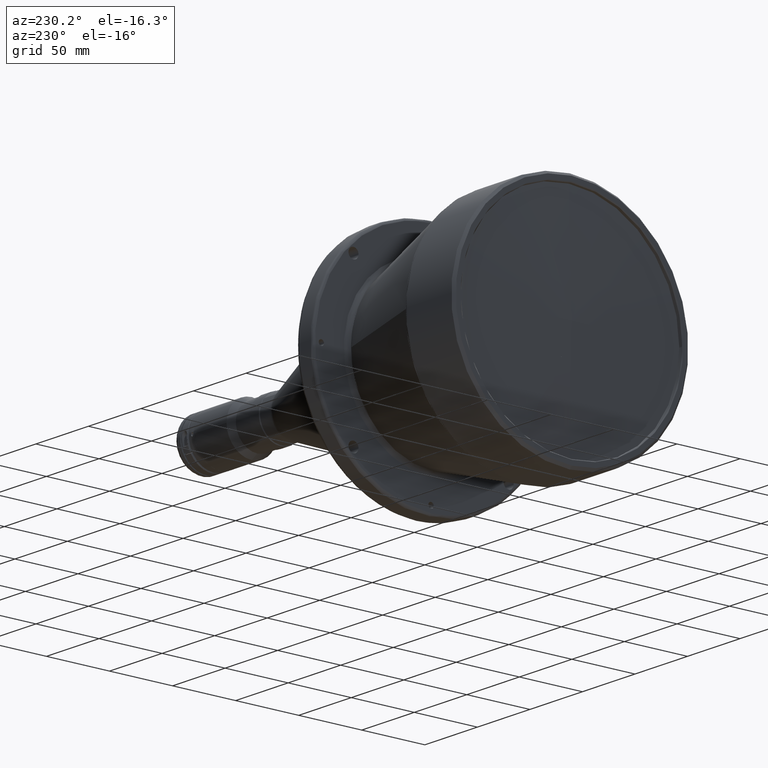
[diagram: clean part render]
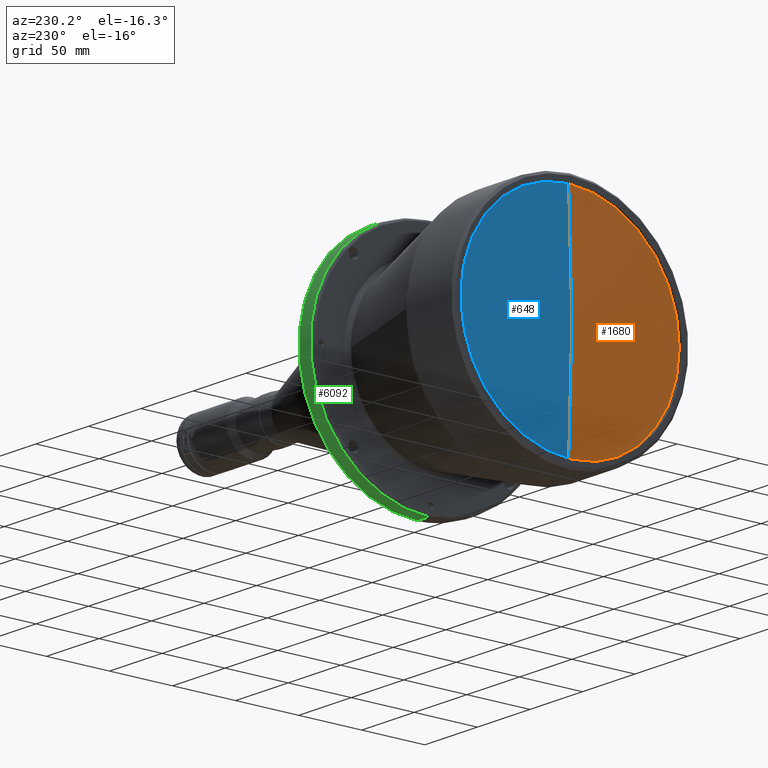
[diagram: same view with three faces highlighted in distinct colors, each labeled with its STEP entity id]
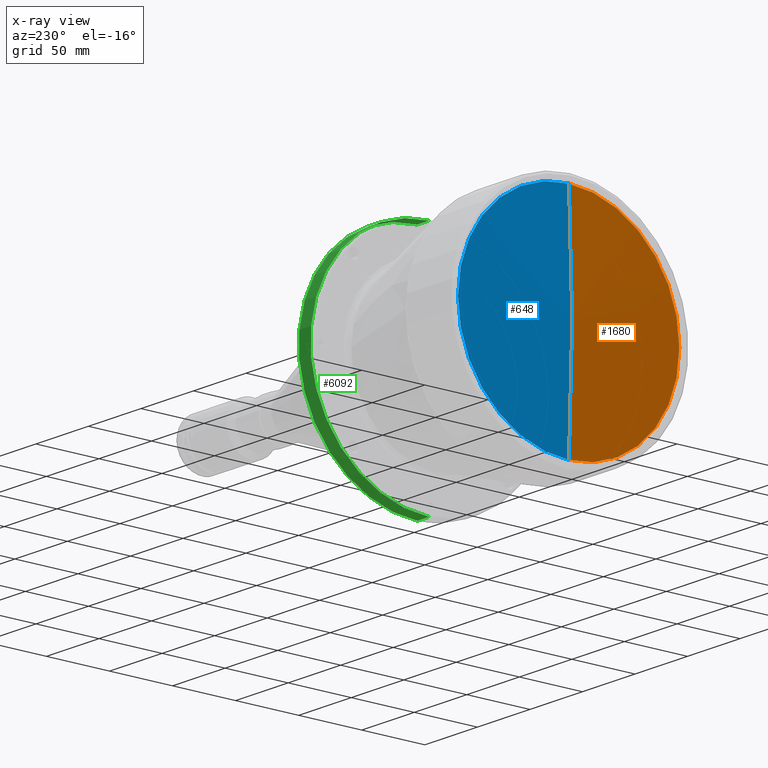
[diagram: x-ray of the same camera — body ghosted, the three highlighted faces saturated]
A machine part, auxiliary view with three faces highlighted in distinct colors.
The next image is the same camera in x-ray (body ghosted, the three faces saturated) — at least one of them is partly hidden behind the body in this view.
Their STEP definitions:

[orange] entity #1680 — the highlighted conical surface has half-angle 88.001 deg.
#137 = DIRECTION ( 'NONE',  ( 1.000000000000000000, 0.0000000000000000000, 0.0000000000000000000 ) ) ;
#148 = AXIS2_PLACEMENT_3D ( 'NONE', #1465, #137, #4847 ) ;
#243 = ORIENTED_EDGE ( 'NONE', *, *, #5098, .F. ) ;
#681 = DIRECTION ( 'NONE',  ( 0.0000000000000000000, 0.0000000000000000000, -1.000000000000000000 ) ) ;
#834 = DIRECTION ( 'NONE',  ( 0.03488013094996843900, 1.223901605364293100E-016, 0.9993915030982167800 ) ) ;
#835 = LINE ( 'NONE', #3746, #4901 ) ;
#907 = EDGE_CURVE ( 'NONE', #2361, #2837, #835, .T. ) ;
#1244 = EDGE_CURVE ( 'NONE', #2361, #5330, #4748, .T. ) ;
#1398 = ORIENTED_EDGE ( 'NONE', *, *, #907, .T. ) ;
#1465 = CARTESIAN_POINT ( 'NONE',  ( 3.062595070471539200, 0.0000000000000000000, 0.0000000000000000000 ) ) ;
#1680 = ADVANCED_FACE ( 'NONE', ( #3766 ), #3452, .T. ) ;
#2105 = DIRECTION ( 'NONE',  ( 1.000000000000000000, 0.0000000000000000000, 0.0000000000000000000 ) ) ;
#2361 = VERTEX_POINT ( 'NONE', #3972 ) ;
#2502 = CARTESIAN_POINT ( 'NONE',  ( 3.062595070471539200, 0.0000000000000000000, -87.75000000000001400 ) ) ;
#2556 = DIRECTION ( 'NONE',  ( 1.000000000000000000, 0.0000000000000000000, 0.0000000000000000000 ) ) ;
#2636 = AXIS2_PLACEMENT_3D ( 'NONE', #5876, #2556, #2988 ) ;
#2726 = CARTESIAN_POINT ( 'NONE',  ( 3.165889264587454100, 1.110872249560078200E-014, 90.70960299194108200 ) ) ;
#2837 = VERTEX_POINT ( 'NONE', #2502 ) ;
#2988 = DIRECTION ( 'NONE',  ( 0.0000000000000000000, 0.0000000000000000000, -1.000000000000000000 ) ) ;
#3169 = DIRECTION ( 'NONE',  ( 0.03488013094996843900, 0.0000000000000000000, -0.9993915030982167800 ) ) ;
#3193 = EDGE_LOOP ( 'NONE', ( #3239, #1398, #3787, #243 ) ) ;
#3239 = ORIENTED_EDGE ( 'NONE', *, *, #1244, .F. ) ;
#3327 = AXIS2_PLACEMENT_3D ( 'NONE', #3579, #2105, #681 ) ;
#3452 = CONICAL_SURFACE ( 'NONE', #3327, 90.70960299194108200, 1.535909119305271600 ) ;
#3579 = CARTESIAN_POINT ( 'NONE',  ( 3.165889264587454100, 0.0000000000000000000, 0.0000000000000000000 ) ) ;
#3746 = CARTESIAN_POINT ( 'NONE',  ( 3.165889264587454100, 0.0000000000000000000, -90.70960299194108200 ) ) ;
#3766 = FACE_OUTER_BOUND ( 'NONE', #3193, .T. ) ;
#3787 = ORIENTED_EDGE ( 'NONE', *, *, #6212, .F. ) ;
#3972 = CARTESIAN_POINT ( 'NONE',  ( 0.0000000000000000000, 0.0000000000000000000, 0.0000000000000000000 ) ) ;
#4167 = CARTESIAN_POINT ( 'NONE',  ( 3.062595070471539200, -87.75000000000001400, 0.0000000000000000000 ) ) ;
#4748 = LINE ( 'NONE', #2726, #5875 ) ;
#4847 = DIRECTION ( 'NONE',  ( 0.0000000000000000000, 0.0000000000000000000, -1.000000000000000000 ) ) ;
#4901 = VECTOR ( 'NONE', #3169, 1000.000000000000200 ) ;
#5098 = EDGE_CURVE ( 'NONE', #5330, #5232, #5822, .T. ) ;
#5232 = VERTEX_POINT ( 'NONE', #4167 ) ;
#5330 = VERTEX_POINT ( 'NONE', #6189 ) ;
#5822 = CIRCLE ( 'NONE', #2636, 87.75000000000001400 ) ;
#5875 = VECTOR ( 'NONE', #834, 1000.000000000000200 ) ;
#5876 = CARTESIAN_POINT ( 'NONE',  ( 3.062595070471539200, 0.0000000000000000000, 0.0000000000000000000 ) ) ;
#6117 = CIRCLE ( 'NONE', #148, 87.75000000000001400 ) ;
#6189 = CARTESIAN_POINT ( 'NONE',  ( 3.062595070471539200, 1.074627566251802500E-014, 87.75000000000001400 ) ) ;
#6212 = EDGE_CURVE ( 'NONE', #5232, #2837, #6117, .T. ) ;

[blue] entity #648 — the highlighted conical surface has half-angle 88.001 deg.
#648 = ADVANCED_FACE ( 'NONE', ( #1264 ), #2395, .T. ) ;
#658 = DIRECTION ( 'NONE',  ( 1.000000000000000000, 0.0000000000000000000, 0.0000000000000000000 ) ) ;
#834 = DIRECTION ( 'NONE',  ( 0.03488013094996843900, 1.223901605364293100E-016, 0.9993915030982167800 ) ) ;
#835 = LINE ( 'NONE', #3746, #4901 ) ;
#907 = EDGE_CURVE ( 'NONE', #2361, #2837, #835, .T. ) ;
#1093 = AXIS2_PLACEMENT_3D ( 'NONE', #3111, #1583, #4977 ) ;
#1244 = EDGE_CURVE ( 'NONE', #2361, #5330, #4748, .T. ) ;
#1264 = FACE_OUTER_BOUND ( 'NONE', #5301, .T. ) ;
#1366 = ORIENTED_EDGE ( 'NONE', *, *, #5423, .F. ) ;
#1583 = DIRECTION ( 'NONE',  ( 1.000000000000000000, 0.0000000000000000000, 0.0000000000000000000 ) ) ;
#1943 = DIRECTION ( 'NONE',  ( 0.0000000000000000000, 0.0000000000000000000, -1.000000000000000000 ) ) ;
#2361 = VERTEX_POINT ( 'NONE', #3972 ) ;
#2395 = CONICAL_SURFACE ( 'NONE', #1093, 90.70960299194108200, 1.535909119305271600 ) ;
#2427 = CARTESIAN_POINT ( 'NONE',  ( 3.062595070471539200, 0.0000000000000000000, 0.0000000000000000000 ) ) ;
#2502 = CARTESIAN_POINT ( 'NONE',  ( 3.062595070471539200, 0.0000000000000000000, -87.75000000000001400 ) ) ;
#2726 = CARTESIAN_POINT ( 'NONE',  ( 3.165889264587454100, 1.110872249560078200E-014, 90.70960299194108200 ) ) ;
#2837 = VERTEX_POINT ( 'NONE', #2502 ) ;
#2881 = ORIENTED_EDGE ( 'NONE', *, *, #1244, .T. ) ;
#3111 = CARTESIAN_POINT ( 'NONE',  ( 3.165889264587454100, 0.0000000000000000000, 0.0000000000000000000 ) ) ;
#3169 = DIRECTION ( 'NONE',  ( 0.03488013094996843900, 0.0000000000000000000, -0.9993915030982167800 ) ) ;
#3275 = ORIENTED_EDGE ( 'NONE', *, *, #5492, .F. ) ;
#3369 = CARTESIAN_POINT ( 'NONE',  ( 3.062595070471539200, 87.75000000000001400, 1.074627566251802500E-014 ) ) ;
#3443 = DIRECTION ( 'NONE',  ( 1.000000000000000000, 0.0000000000000000000, 0.0000000000000000000 ) ) ;
#3536 = CARTESIAN_POINT ( 'NONE',  ( 3.062595070471539200, 0.0000000000000000000, 0.0000000000000000000 ) ) ;
#3746 = CARTESIAN_POINT ( 'NONE',  ( 3.165889264587454100, 0.0000000000000000000, -90.70960299194108200 ) ) ;
#3931 = CIRCLE ( 'NONE', #5451, 87.75000000000001400 ) ;
#3972 = CARTESIAN_POINT ( 'NONE',  ( 0.0000000000000000000, 0.0000000000000000000, 0.0000000000000000000 ) ) ;
#4258 = VERTEX_POINT ( 'NONE', #3369 ) ;
#4259 = ORIENTED_EDGE ( 'NONE', *, *, #907, .F. ) ;
#4748 = LINE ( 'NONE', #2726, #5875 ) ;
#4901 = VECTOR ( 'NONE', #3169, 1000.000000000000200 ) ;
#4977 = DIRECTION ( 'NONE',  ( 0.0000000000000000000, 0.0000000000000000000, -1.000000000000000000 ) ) ;
#5014 = DIRECTION ( 'NONE',  ( 0.0000000000000000000, 0.0000000000000000000, -1.000000000000000000 ) ) ;
#5148 = CIRCLE ( 'NONE', #5843, 87.75000000000001400 ) ;
#5301 = EDGE_LOOP ( 'NONE', ( #4259, #2881, #3275, #1366 ) ) ;
#5330 = VERTEX_POINT ( 'NONE', #6189 ) ;
#5423 = EDGE_CURVE ( 'NONE', #2837, #4258, #5148, .T. ) ;
#5451 = AXIS2_PLACEMENT_3D ( 'NONE', #3536, #658, #5014 ) ;
#5492 = EDGE_CURVE ( 'NONE', #4258, #5330, #3931, .T. ) ;
#5843 = AXIS2_PLACEMENT_3D ( 'NONE', #2427, #3443, #1943 ) ;
#5875 = VECTOR ( 'NONE', #834, 1000.000000000000200 ) ;
#6189 = CARTESIAN_POINT ( 'NONE',  ( 3.062595070471539200, 1.074627566251802500E-014, 87.75000000000001400 ) ) ;

[green] entity #6092 — the highlighted cylindrical surface (partial cylindrical patch) has radius 94 mm, axis along (-1, 0, 0).
#46 = ORIENTED_EDGE ( 'NONE', *, *, #1443, .F. ) ;
#255 = LINE ( 'NONE', #2209, #4916 ) ;
#272 = EDGE_LOOP ( 'NONE', ( #480, #4949, #46, #3503 ) ) ;
#480 = ORIENTED_EDGE ( 'NONE', *, *, #4720, .F. ) ;
#539 = VECTOR ( 'NONE', #4401, 1000.000000000000000 ) ;
#743 = CARTESIAN_POINT ( 'NONE',  ( 147.0000000000000000, 0.0000000000000000000, 0.0000000000000000000 ) ) ;
#1143 = AXIS2_PLACEMENT_3D ( 'NONE', #4254, #2253, #2737 ) ;
#1389 = CARTESIAN_POINT ( 'NONE',  ( 135.9999999988825700, -9.639861140220564800E-009, -94.00000000023887000 ) ) ;
#1443 = EDGE_CURVE ( 'NONE', #4860, #4159, #2998, .T. ) ;
#1632 = EDGE_CURVE ( 'NONE', #3779, #4159, #2685, .T. ) ;
#1902 = CIRCLE ( 'NONE', #1143, 94.00000000000000000 ) ;
#2209 = CARTESIAN_POINT ( 'NONE',  ( 147.0000000000000000, 0.0000000000000000000, 94.00000000000000000 ) ) ;
#2253 = DIRECTION ( 'NONE',  ( 1.000000000000000000, -0.0000000000000000000, -0.0000000000000000000 ) ) ;
#2507 = CARTESIAN_POINT ( 'NONE',  ( 147.0000000000000000, 1.151167991198512100E-014, -94.00000000000000000 ) ) ;
#2685 = LINE ( 'NONE', #2507, #539 ) ;
#2737 = DIRECTION ( 'NONE',  ( 0.0000000000000000000, 8.881784197001252300E-016, 1.000000000000000000 ) ) ;
#2998 = CIRCLE ( 'NONE', #4982, 94.00000000031849400 ) ;
#3143 = DIRECTION ( 'NONE',  ( -1.000000000000000000, 0.0000000000000000000, 0.0000000000000000000 ) ) ;
#3203 = CARTESIAN_POINT ( 'NONE',  ( 135.9999999988826000, -6.330450804229253700E-009, 94.00000000023887000 ) ) ;
#3503 = ORIENTED_EDGE ( 'NONE', *, *, #5694, .F. ) ;
#3779 = VERTEX_POINT ( 'NONE', #5243 ) ;
#4135 = DIRECTION ( 'NONE',  ( 0.0000000000000000000, 0.0000000000000000000, 1.000000000000000000 ) ) ;
#4142 = DIRECTION ( 'NONE',  ( 0.0000000000000000000, 0.0000000000000000000, 1.000000000000000000 ) ) ;
#4159 = VERTEX_POINT ( 'NONE', #1389 ) ;
#4254 = CARTESIAN_POINT ( 'NONE',  ( 147.0000000000000000, 0.0000000000000000000, 0.0000000000000000000 ) ) ;
#4332 = VERTEX_POINT ( 'NONE', #5346 ) ;
#4401 = DIRECTION ( 'NONE',  ( -1.000000000000000000, 0.0000000000000000000, 0.0000000000000000000 ) ) ;
#4610 = DIRECTION ( 'NONE',  ( -1.000000000000000000, -0.0000000000000000000, -0.0000000000000000000 ) ) ;
#4612 = CYLINDRICAL_SURFACE ( 'NONE', #4634, 94.00000000000000000 ) ;
#4634 = AXIS2_PLACEMENT_3D ( 'NONE', #743, #3143, #4135 ) ;
#4720 = EDGE_CURVE ( 'NONE', #3779, #4332, #1902, .T. ) ;
#4839 = FACE_OUTER_BOUND ( 'NONE', #272, .T. ) ;
#4860 = VERTEX_POINT ( 'NONE', #3203 ) ;
#4916 = VECTOR ( 'NONE', #5598, 1000.000000000000000 ) ;
#4949 = ORIENTED_EDGE ( 'NONE', *, *, #1632, .T. ) ;
#4982 = AXIS2_PLACEMENT_3D ( 'NONE', #5060, #4610, #4142 ) ;
#5060 = CARTESIAN_POINT ( 'NONE',  ( 135.9999999988826000, 0.0000000000000000000, 0.0000000000000000000 ) ) ;
#5243 = CARTESIAN_POINT ( 'NONE',  ( 147.0000000002793600, -2.891958342066169400E-008, -94.00000000007963800 ) ) ;
#5346 = CARTESIAN_POINT ( 'NONE',  ( 147.0000000002793600, -8.440601072300905400E-009, 94.00000000007963800 ) ) ;
#5598 = DIRECTION ( 'NONE',  ( -1.000000000000000000, 0.0000000000000000000, 0.0000000000000000000 ) ) ;
#5694 = EDGE_CURVE ( 'NONE', #4332, #4860, #255, .T. ) ;
#6092 = ADVANCED_FACE ( 'NONE', ( #4839 ), #4612, .T. ) ;